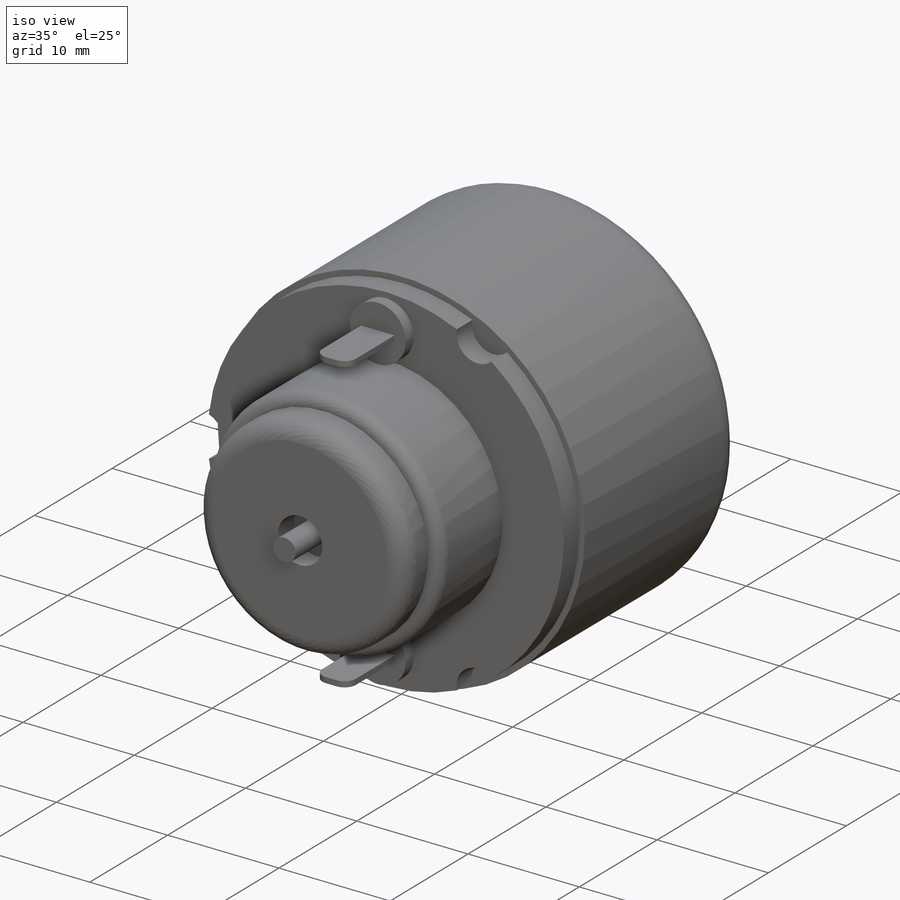
[diagram: iso view]
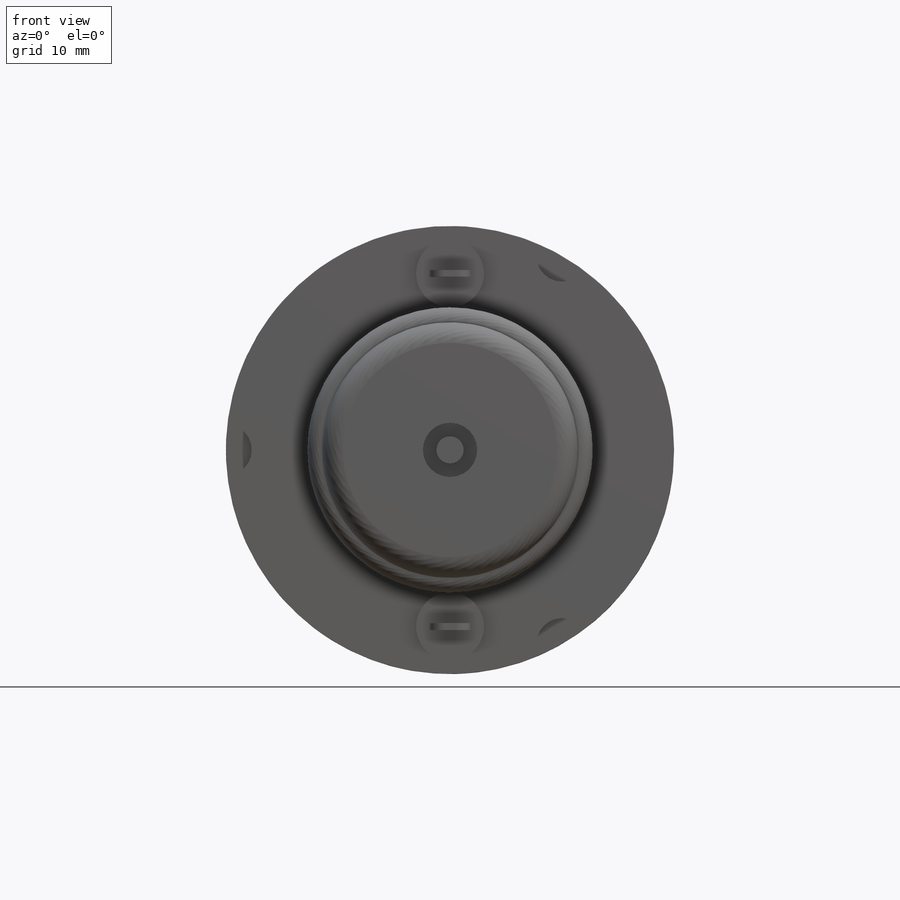
[diagram: front view]
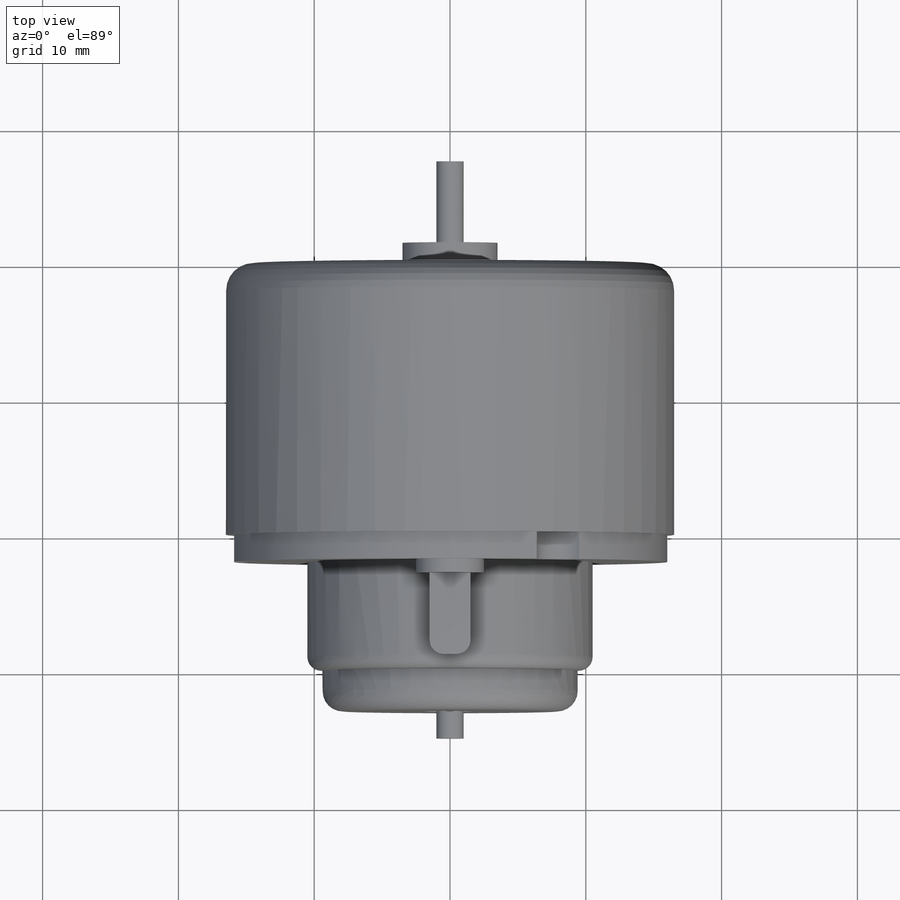
[diagram: top view]
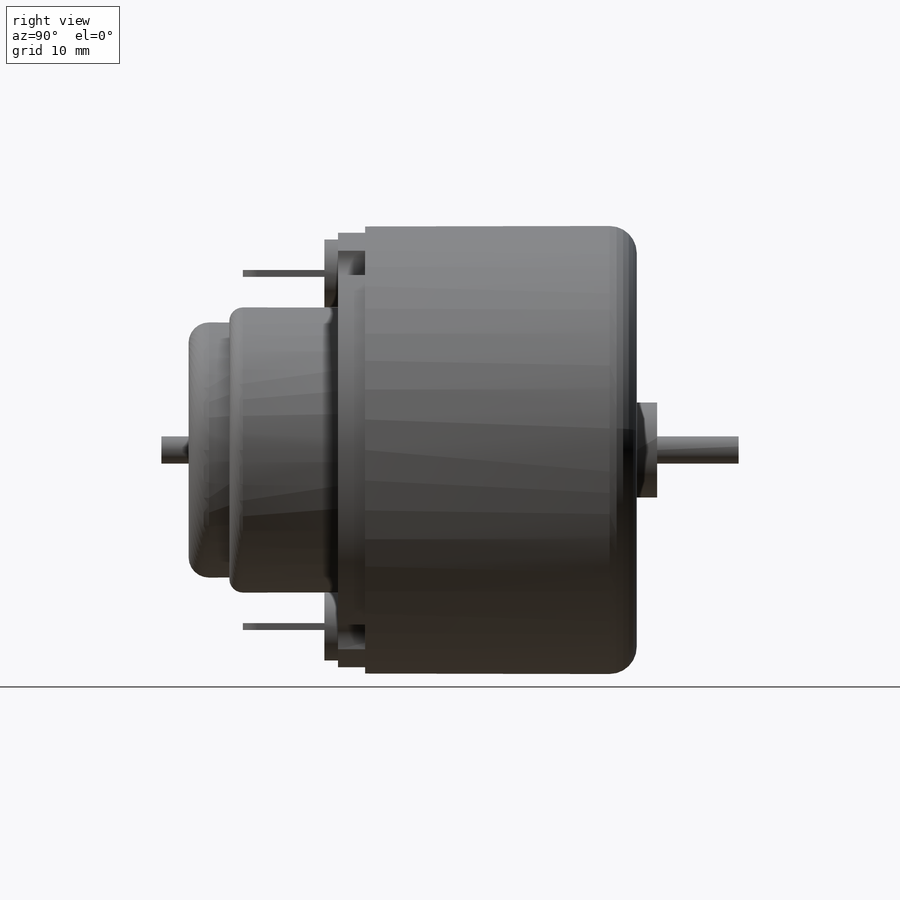
[diagram: right view]
SOLIDWORKS PART (.sldprt)
format: sldprt  version: not decoded by parser v0  size: 520,192 bytes
history: native  units: mm
features: sketch x15, extrude x10, plane x5, fillet x5, cut_extrude x3, material x1, hole x1 (+9 scaffold rows collapsed)
feature tree (49):
  scaffold x9  (default folders/planes/origin — collapsed)
  material  "Material <não especificado>"
  plane  "Plano frontal"
  plane  "Plano superior"
  plane  "Plano direito"
  sketch  "Esboço1"  dims[D1=33.0mm]
  extrude  "Ressalto-extrusão1"  Depth=20mm
  sketch  "Esboço4"  dims[c1.D1=7.0mm c1.D2=2.5mm c1.D3=2.5mm c1.D4=2.5mm c1.D5=13.0mm c1.D6=13.0mm c2.D6=120.0deg c2.D7=13.0mm c2.D8=13.0mm c3.D8=120.0deg c3.D9=13.0mm]
  extrude  "Ressalto-extrusão4"  Depth=1.5mm
  sketch  "Esboço14"  dims[D1=2.0mm]
  extrude  "Ressalto-extrusão7"  Depth=4mm
  hole  "Furo roscado de M2.5x0.451"  Diameter=2.05mm Depth=3.5mm
  sketch  "Esboço16"  dims[c1.D1=13.0mm c1.D2=13.0mm c1.D3=13.0mm c1.D4=13.0mm c2.D4=120.0deg c2.D5=13.0mm c3.D5=120.0deg c3.D6=13.0mm c3.D7=13.0mm c3.D8=13.0mm c3.D9=~9.522183mm c4.D9=120.0deg c4.D10=13.0mm c5.D10=120.0deg c5.D11=13.0mm c6.D11=60.0deg]
  sketch  "Esboço15"  dims[hole-wizard template sketch: 47 standard entries collapsed; hole parameters kept: c15.Tap Drill Depth=3.5mm c15.D3=~14.816244mm c15.Drill Angle=118.0deg]
  fillet  "Filete1"  Radius=2mm
  sketch  "Esboço17"  dims[c1.D4=3.8mm c1.D5=3.8mm c1.D6=3.8mm c1.D7=32.0mm c1.D2=~11.10065mm c2.D2=120.0deg c2.D3=16.5mm c3.D3=120.0deg c3.D4=~15.937776mm c3.D7=16.5mm c3.D1=0.0mm]
  extrude  "Ressalto-extrusão9"  Depth=2mm
  sketch  "Esboço18"  dims[D1=21.0mm]
  extrude  "Ressalto-extrusão10"  Depth=8mm
  fillet  "Filete2"  Radius=1mm
  sketch  "Esboço19"  dims[D1=18.8mm]
  extrude  "Ressalto-extrusão11"  Depth=3mm
  fillet  "Filete3"  Radius=1.5mm
  sketch  "Esboço20"  dims[D1=4.0mm]
  cut_extrude  "Corte-extrusão1"  Depth=2mm
  sketch  "Esboço21"  dims[D1=2.0mm]
  extrude  "Ressalto-extrusão13"  Depth=4mm
  sketch  "Esboço22"  dims[D3=5.0mm D4=5.0mm D1=13.0mm D2=13.0mm]
  extrude  "Ressalto-extrusão15"  Depth=1mm
  sketch  "Esboço23"  dims[D1=3.0mm D2=3.0mm D3=0.5mm D4=0.5mm]
  extrude  "Ressalto-extrusão16"  Depth=6mm
  fillet  "Filete4"  Radius=1mm
  fillet  "Filete5"  Radius=1mm
  plane  "Plano1"
  sketch  "Esboço24"  dims[D1=6.7mm D2=4.0mm D3=5.0mm D4=~5.728659mm]
  extrude  "Ressalto-extrusão17"  Depth=3mm
  sketch  "Esboço25"  dims[D2=0.2mm D3=0.2mm D1=0.5mm]
  cut_extrude  "Corte-extrusão2"  Depth=2.8mm
  sketch  "Esboço26"  dims[D1=1.0mm D2=1.0mm]
  cut_extrude  "Corte-extrusão3"  Depth=2.5mm
  plane  "Plano2"  Offset=11mm
decode coverage: 34 of 34 modeling features carry decoded parameters
note: ~ marks probable driven/reference dimensions
note: suppression state not decoded; provenance and decode notes live in map.json
